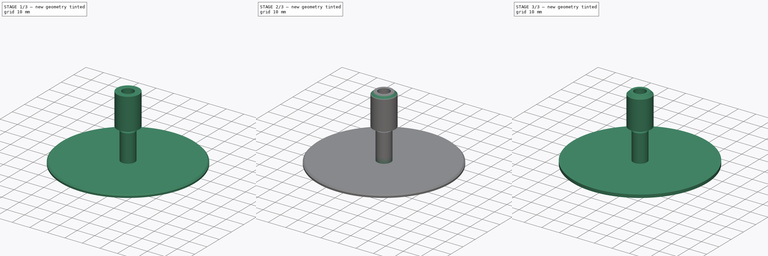
[diagram: build sequence overview — one tinted view per stage of 3, left to right]
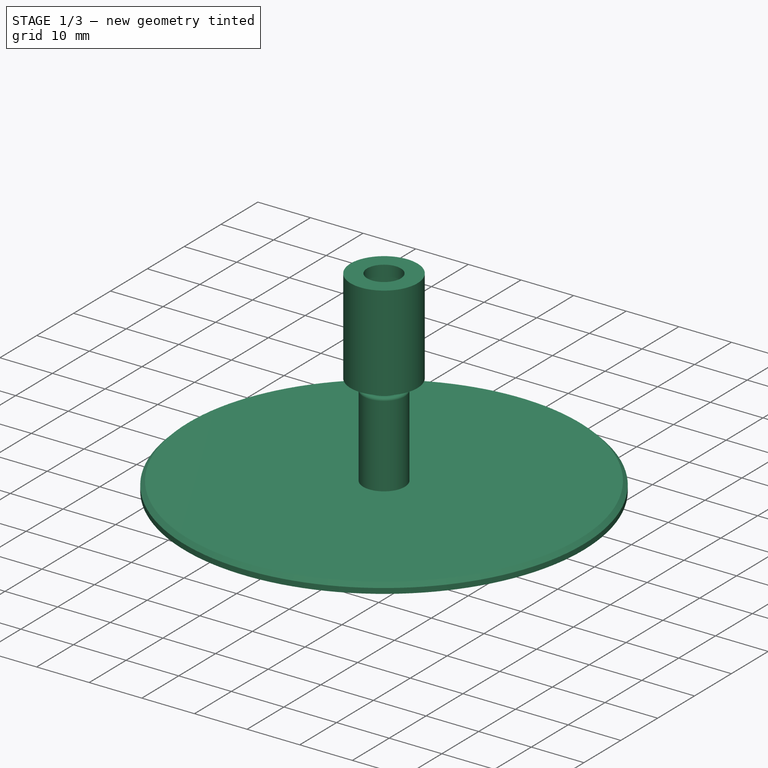
[diagram: stage 1 of 3 — iso view after this stage's code; geometry added in this stage tinted green]
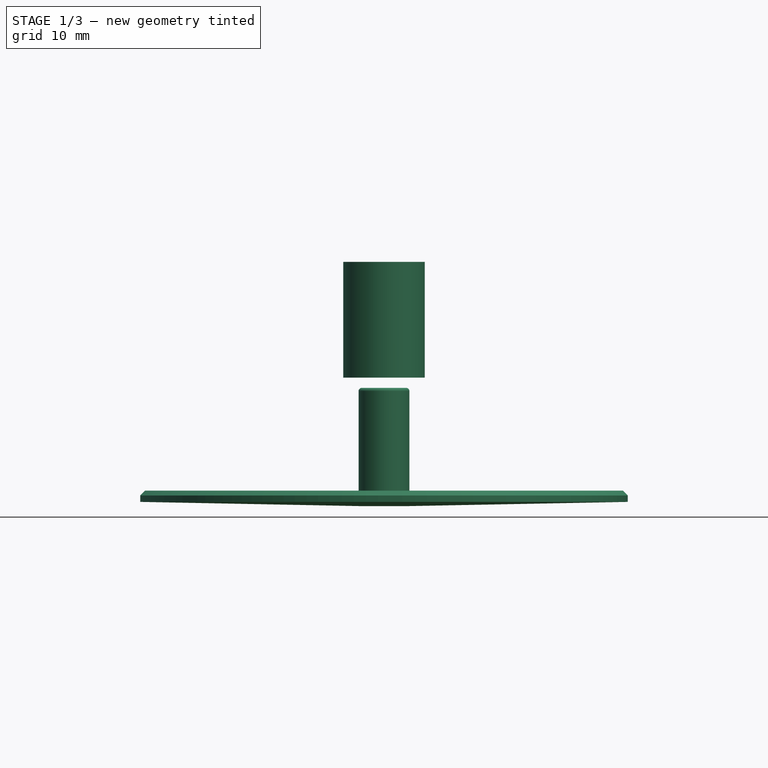
[diagram: stage 1 of 3 — front view after this stage's code; geometry added in this stage tinted green]
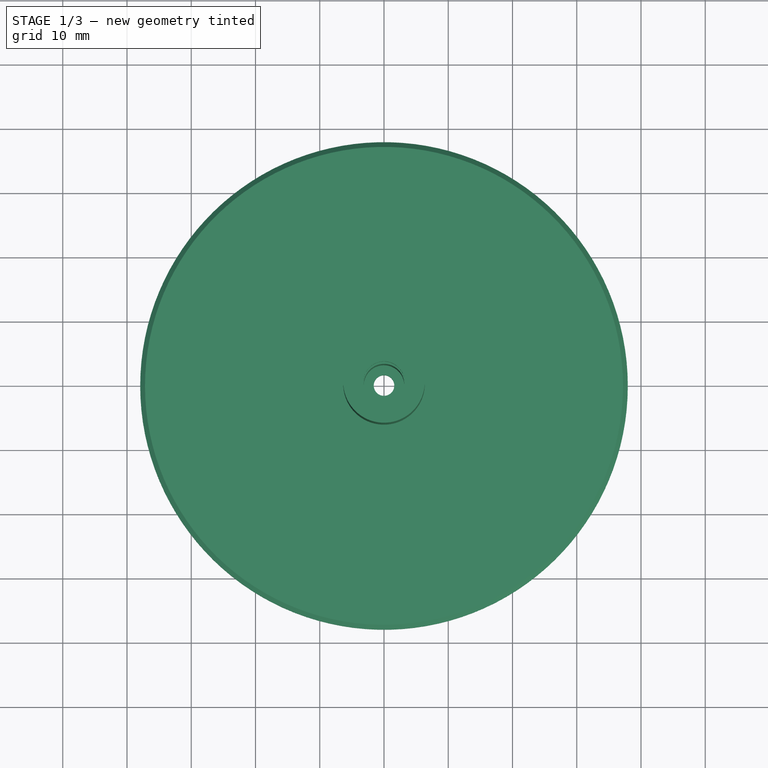
[diagram: stage 1 of 3 — top view after this stage's code; geometry added in this stage tinted green]
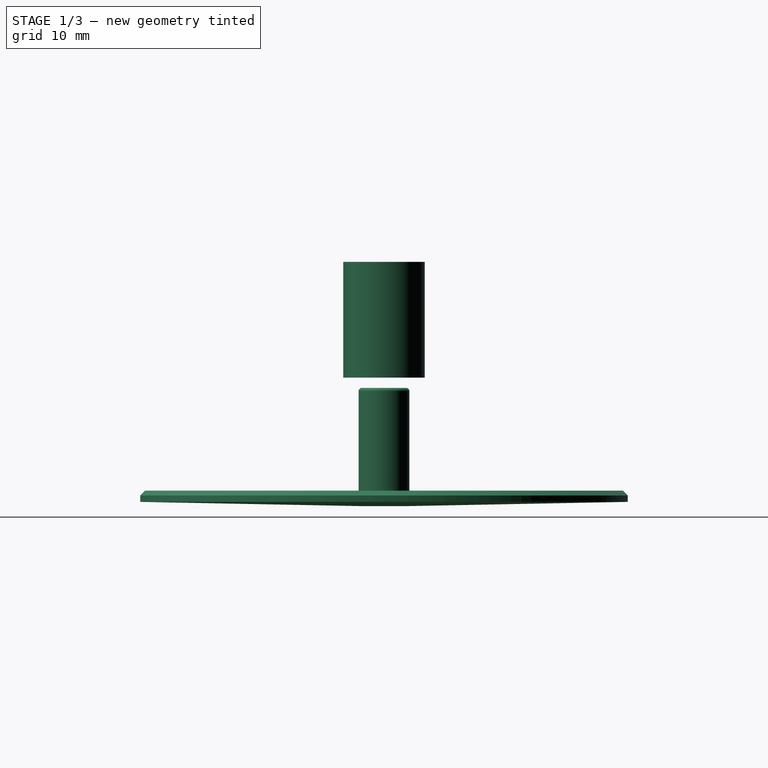
[diagram: stage 1 of 3 — right view after this stage's code; geometry added in this stage tinted green]
FCSTD DOCUMENT  (FreeCAD 0.14R3347 (Git))
Label: film-table
License: CC-BY 3.0
LicenseURL: http://creativecommons.org/licenses/by/3.0/
objects: Sketcher::SketchObject×7, Part::Feature×5, PartDesign::Revolution×2, PartDesign::Chamfer×2, PartDesign::Pad×1, Part::MultiFuse×1, PartDesign::Fillet×1, PartDesign::Pocket×1
note: 24 computed .brp shape members not serialized (recipe doc carries the construction recipe); baked Part::Feature solids carry a one-line shape summary decoded from their .brp

FEATURE [Sketcher::SketchObject] Sketch001
FEATURE [Sketcher::SketchObject] Sketch004  label="Table"
  Placement = pos=(0,0,0) rot=(1,0,0;1.5708rad)
  sketch-geometry (6):
    g0: LineSegment StartX=37.95 StartY=0.65 StartZ=0 EndX=37.95 EndY=2.4 EndZ=0
    g1: LineSegment StartX=37.95 StartY=2.4 StartZ=0 EndX=3.95 EndY=2.4 EndZ=0
    g2: LineSegment StartX=37.95 StartY=0.65 StartZ=0 EndX=3.95 EndY=0 EndZ=0
    g3: LineSegment StartX=3.95 StartY=2.4 StartZ=0 EndX=3.55 EndY=2.4 EndZ=0
    g4: LineSegment StartX=3.55 StartY=2.4 StartZ=0 EndX=3.55 EndY=0 EndZ=0
    g5: LineSegment StartX=3.55 StartY=0 StartZ=0 EndX=3.95 EndY=0 EndZ=0
  constraints (18):
    c: Vertical(g0)
    c: Coincident(g0,g1)
    c: DistanceX(g-1,g1) = 3.95
    c: DistanceY(g0,g0) = -1.75
    c: Coincident(g2,g0)
    c: Horizontal(g1)
    c: Coincident(g3,g1)
    c: Horizontal(g3)
    c: Coincident(g4,g3)
    c: Vertical(g4)
    c: Coincident(g5,g4)
    c: Horizontal(g5)
    c: DistanceY(g4) = -2.4
    c: Equal(g3,g5)
    c: DistanceX(g3) = -0.4
    c: DistanceX(g1) = -34
    c: PointOnObject(g4,g-1)
    c: Coincident(g2,g5)
FEATURE [Sketcher::SketchObject] Sketch007
  Placement = pos=(0,0,4.5) rot=(0,0,1;3.14159rad)
FEATURE [Sketcher::SketchObject] Sketch008
  Placement = pos=(0,0,4.5) rot=(0,0,1;3.14159rad)
FEATURE [Sketcher::SketchObject] Sketch010  label="Super8Adapter"
  Placement = pos=(0,0,0) rot=(1,0,0;1.5708rad)
  sketch-geometry (6):
    g0: LineSegment StartX=4.2 StartY=20 StartZ=0 EndX=4.2 EndY=36 EndZ=0
    g1: LineSegment StartX=4.2 StartY=36 StartZ=0 EndX=0 EndY=36 EndZ=0
    g2: LineSegment StartX=0 StartY=36 StartZ=0 EndX=0 EndY=38 EndZ=0
    g3: LineSegment StartX=0 StartY=38 StartZ=0 EndX=6.35 EndY=38 EndZ=0
    g4: LineSegment StartX=6.35 StartY=38 StartZ=0 EndX=6.35 EndY=20 EndZ=0
    g5: LineSegment StartX=6.35 StartY=20 StartZ=0 EndX=4.2 EndY=20 EndZ=0
  constraints (18):
    c: Vertical(g0)
    c: Coincident(g0,g1)
    c: Horizontal(g1)
    c: Coincident(g1,g2)
    c: Vertical(g2)
    c: Coincident(g2,g3)
    c: Horizontal(g3)
    c: Coincident(g3,g4)
    c: Vertical(g4)
    c: Coincident(g4,g5)
    c: Horizontal(g5)
    c: Coincident(g5,g0)
    c: DistanceX(g3,g2) = -6.35
    c: DistanceX(g-1,g0) = 4.2
    c: DistanceY(g4) = -18
    c: DistanceY(g2) = 2
    c: DistanceY(g-1,g4) = 20
    c: PointOnObject(g1,g-2)
FEATURE [PartDesign::Revolution] Revolution001
  Angle = 360
  Axis = (0,0,1)
  Base = (0,0,0)
  Placement = pos=(0,0,0) rot=(1,0,0;1.5708rad)
  ReferenceAxis = -> Sketch010 [V_Axis]
  Reversed = true
  Sketch = -> Sketch010
FEATURE [Part::Feature] Fillet004  label="Table Refined"
  shape: bbox 75.9 x 75.9 x 18.4 mm, 61 faces (baked)
FEATURE [Part::Feature] Fillet005  label="Table Refined001"
  shape: bbox 75.9 x 75.9 x 18.4 mm, 61 faces (baked)
FEATURE [PartDesign::Pocket] Pocket
  Length = 5
  Placement = pos=(0,0,0) rot=(1,0,0;1.5708rad)
  Sketch = -> Sketch011
  Type = 1
FEATURE [Part::Feature] Chamfer_solid001  label="Chamfer (Solid)001"
  shape: bbox 12.7 x 12.7 x 18 mm, 7 faces (baked)
FEATURE [Part::Feature] Chamfer_solid  label="Super8 Adapter"
  shape: bbox 12.7 x 12.7 x 18 mm, 7 faces (baked)
FEATURE [PartDesign::Chamfer] Chamfer001  label="Film Table"
  Base = -> Fillet005 [Edge1]
  Size = 0.75
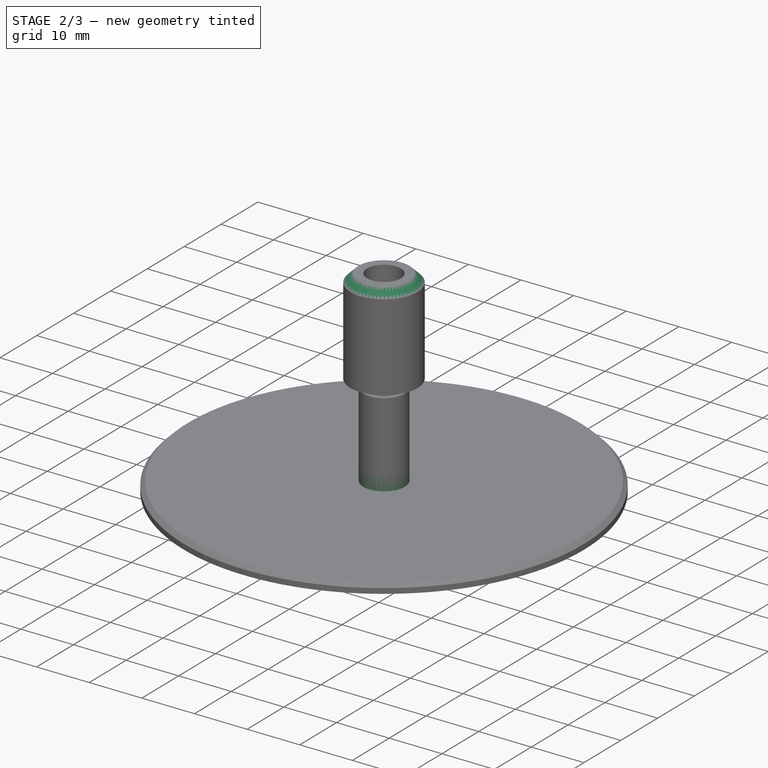
[diagram: stage 2 of 3 — iso view after this stage's code; geometry added in this stage tinted green]
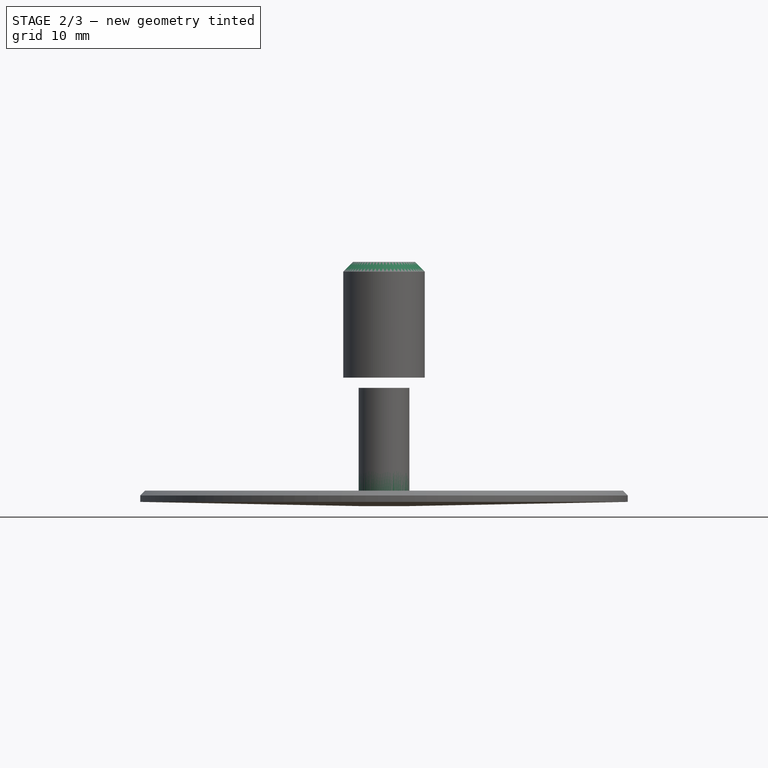
[diagram: stage 2 of 3 — front view after this stage's code; geometry added in this stage tinted green]
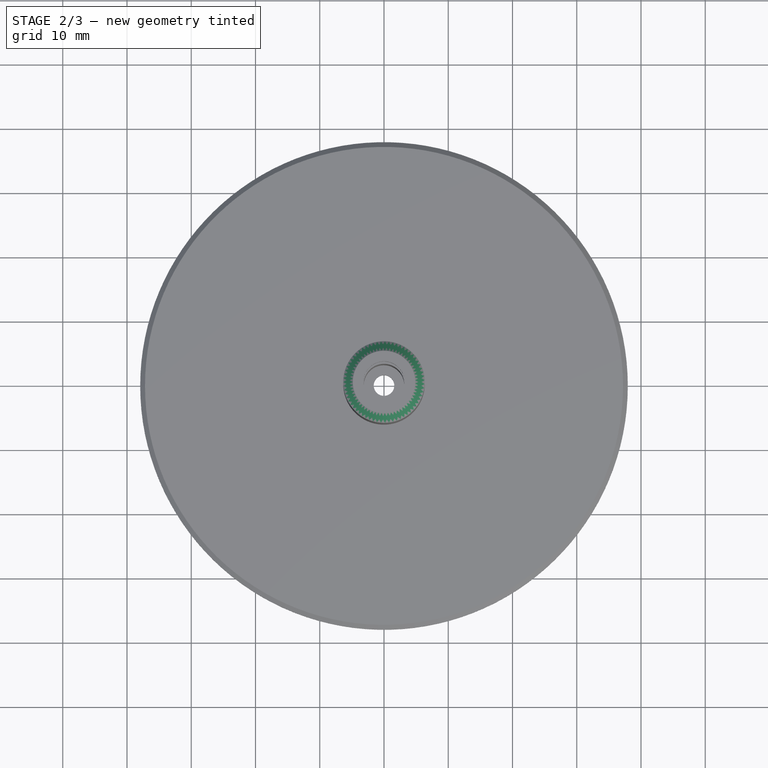
[diagram: stage 2 of 3 — top view after this stage's code; geometry added in this stage tinted green]
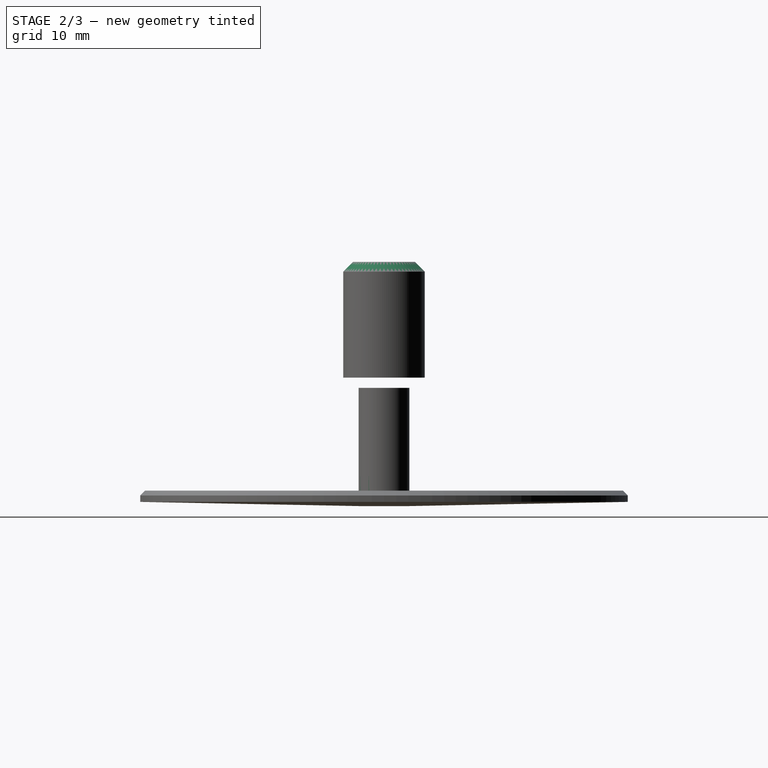
[diagram: stage 2 of 3 — right view after this stage's code; geometry added in this stage tinted green]
FEATURE [Sketcher::SketchObject] Sketch012
  ExternalGeometry = -> [Pad]
  Placement = pos=(0,0,5.4) rot=(0,0,1;0rad)
  Support = -> Pad [Face54]
  sketch-geometry (2):
    g0: Circle CenterX=0 CenterY=0 CenterZ=0 NormalX=0 NormalY=0 NormalZ=1 Radius=3.95
    g1: Circle CenterX=0 CenterY=0 CenterZ=0 NormalX=0 NormalY=0 NormalZ=1 Radius=3.15
  constraints (4):
    c: Coincident(g0,g-1)
    c: Equal(g0,g-3)
    c: Coincident(g1,g-1)
    c: Radius(g1) = 3.15
FEATURE [PartDesign::Pad] Pad001
  Length = 13
  Length2 = 100
  Sketch = -> Sketch012
  Type = 0
FEATURE [PartDesign::Chamfer] Chamfer
  Base = -> Pocket [Edge6]
  Placement = pos=(0,0,0) rot=(1,0,0;1.5708rad)
  Size = 1.5
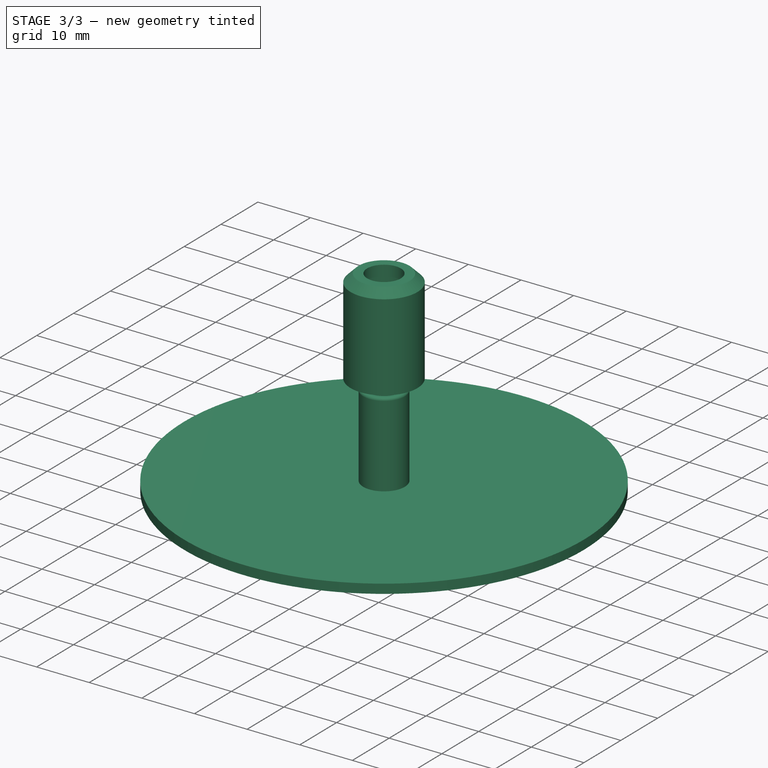
[diagram: stage 3 of 3 — iso view after this stage's code; geometry added in this stage tinted green]
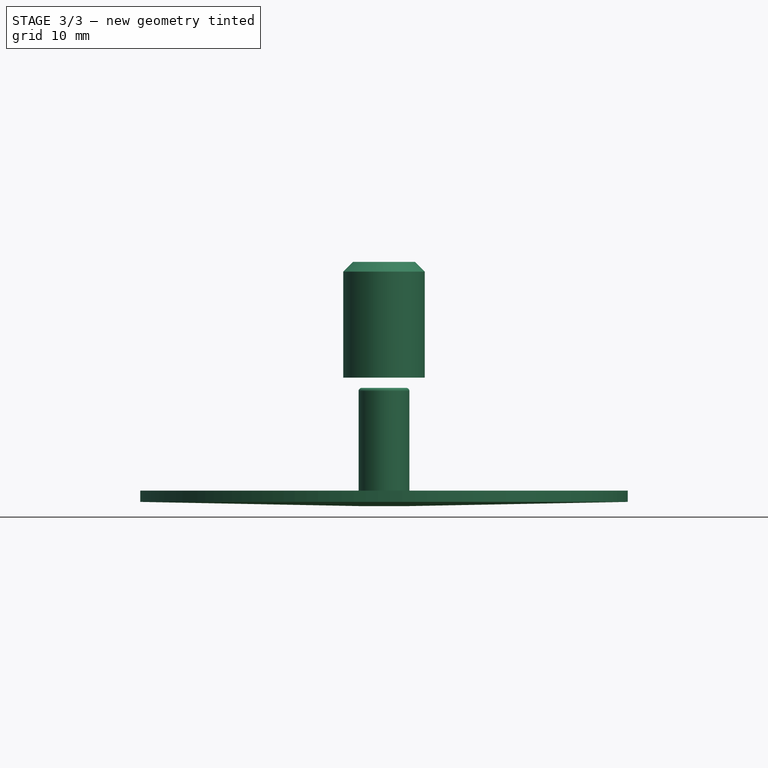
[diagram: stage 3 of 3 — front view after this stage's code; geometry added in this stage tinted green]
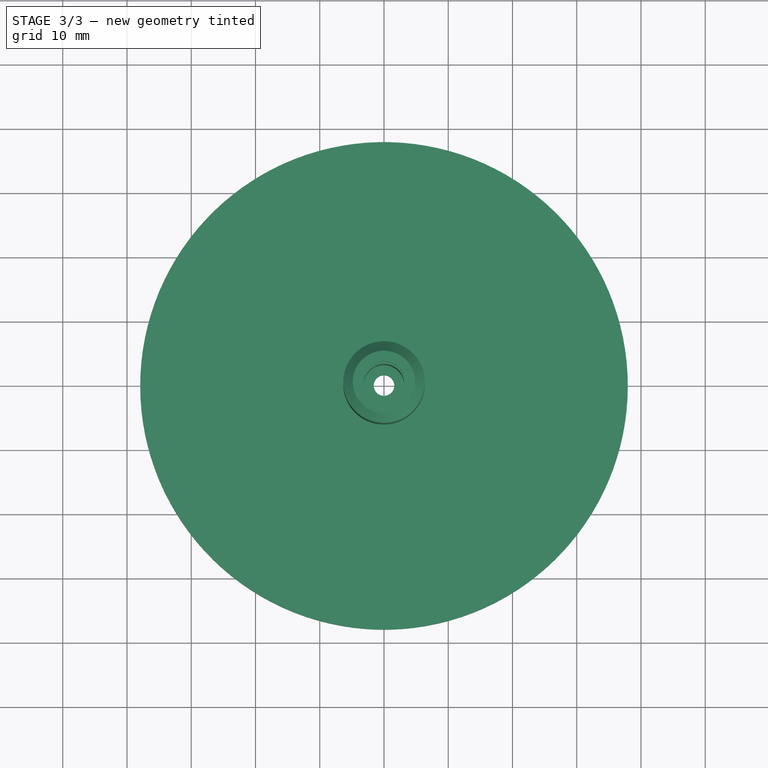
[diagram: stage 3 of 3 — top view after this stage's code; geometry added in this stage tinted green]
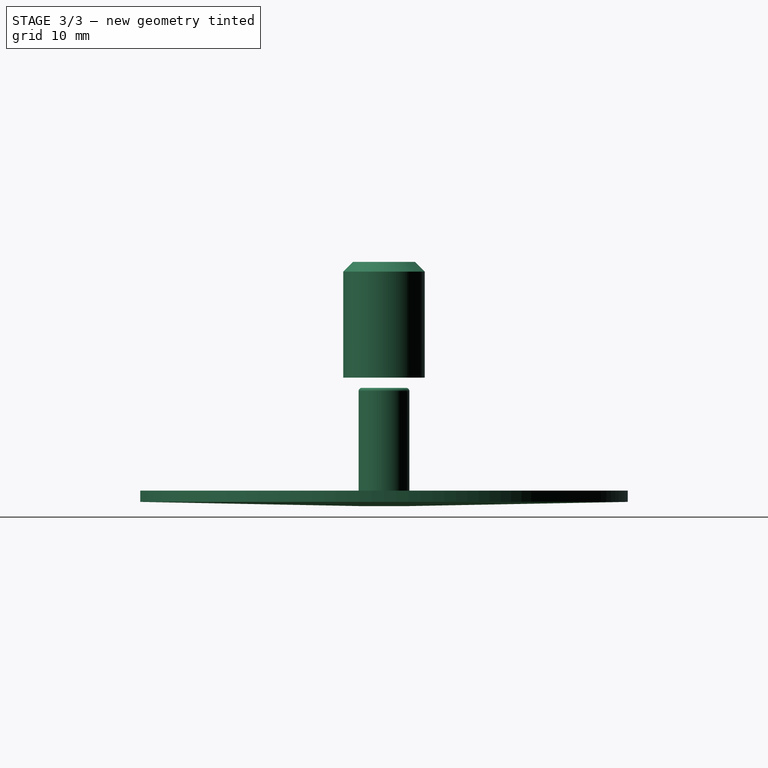
[diagram: stage 3 of 3 — right view after this stage's code; geometry added in this stage tinted green]
FEATURE [Sketcher::SketchObject] Sketch011
  Placement = pos=(0,0,38) rot=(0,0,1;3.14159rad)
  Support = -> Revolution001 [Face3]
  sketch-geometry (1):
    g0: Circle CenterX=0 CenterY=0 CenterZ=0 NormalX=0 NormalY=0 NormalZ=1 Radius=3.2
  constraints (2):
    c: Coincident(g0,g-1)
    c: Radius(g0) = 3.2
FEATURE [Part::Feature] Pad  label="Spline Refined"
  shape: bbox 7.9 x 7.9 x 5.4 mm, 55 faces (baked)
FEATURE [PartDesign::Revolution] Revolution
  Angle = 360
  Axis = (0,0,1)
  Base = (0,0,0)
  Placement = pos=(0,0,0) rot=(1,0,0;1.5708rad)
  ReferenceAxis = -> Sketch004 [V_Axis]
  Reversed = true
  Sketch = -> Sketch004
FEATURE [Part::MultiFuse] Fusion
  Shapes = -> [Revolution,Pad001]
FEATURE [PartDesign::Fillet] Fillet
  Base = -> Fusion [Edge61]
  Radius = 0.5
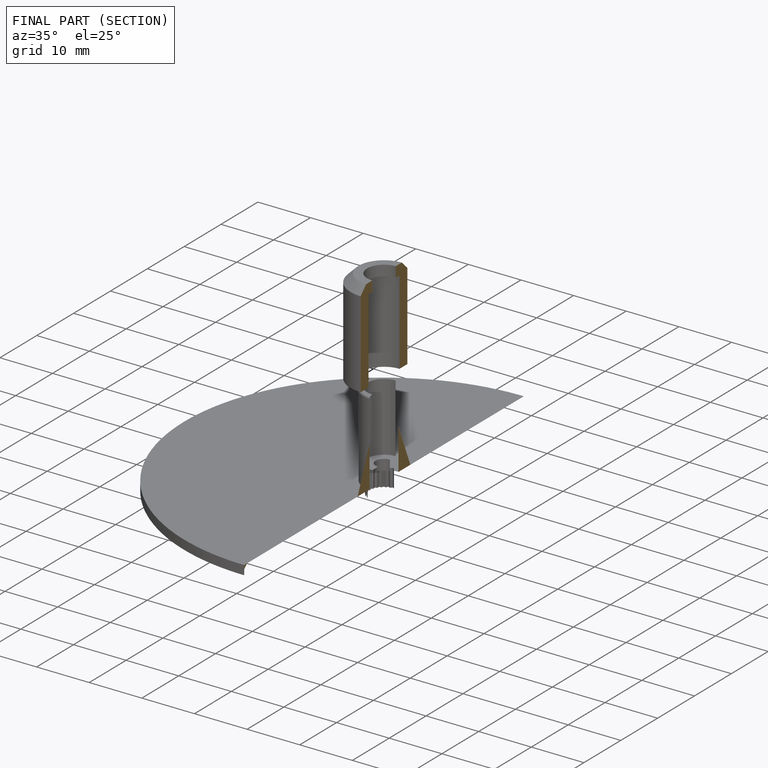
[diagram: finished part — half-section view (interior)]
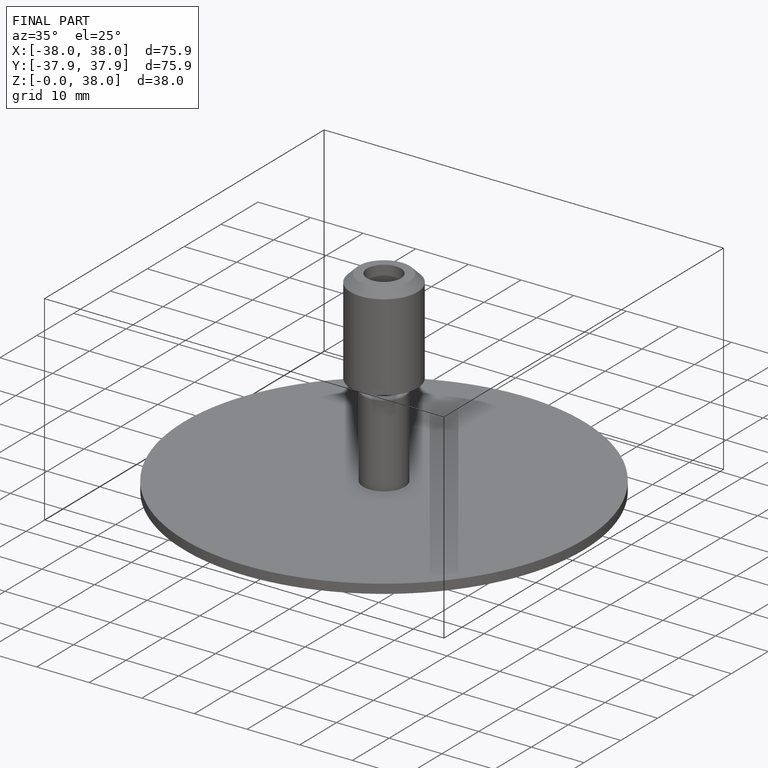
[diagram: finished part — iso view with bounding-box wireframe]
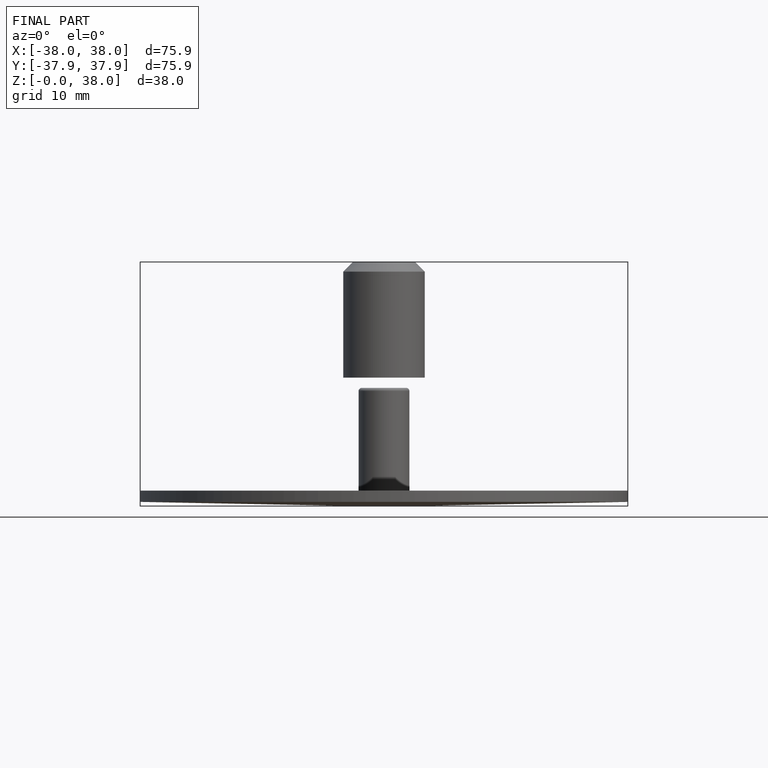
[diagram: finished part — front view with bounding-box wireframe]
